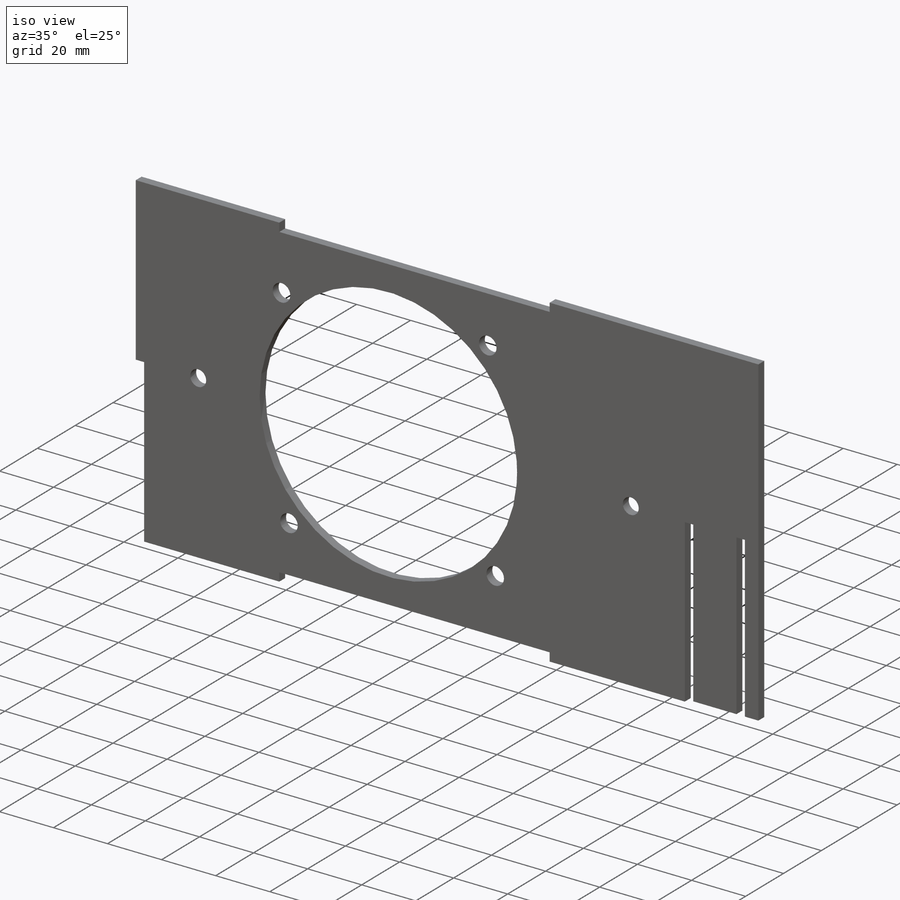
[diagram: iso view]
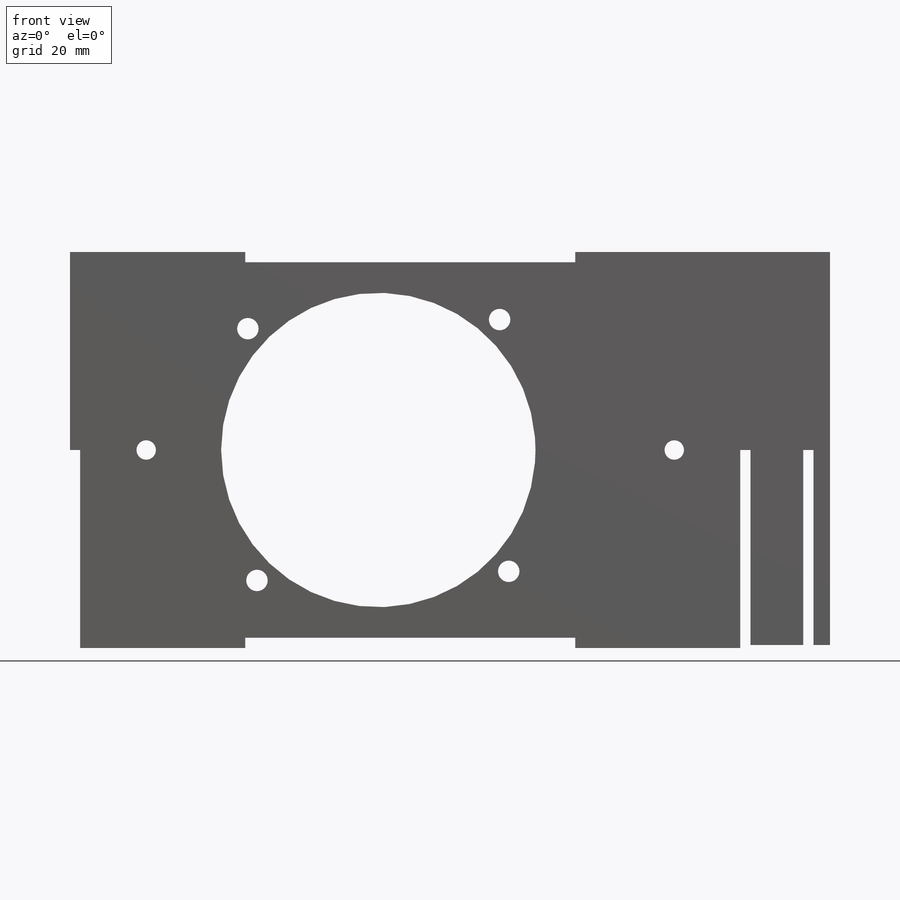
[diagram: front view]
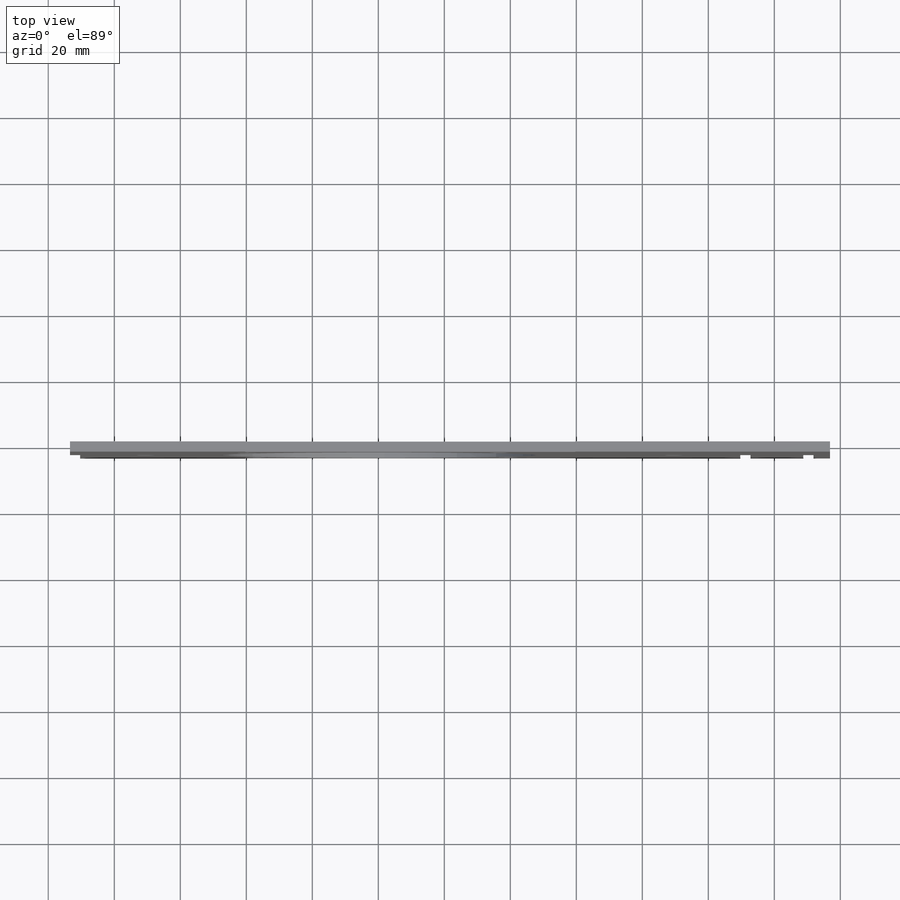
[diagram: top view]
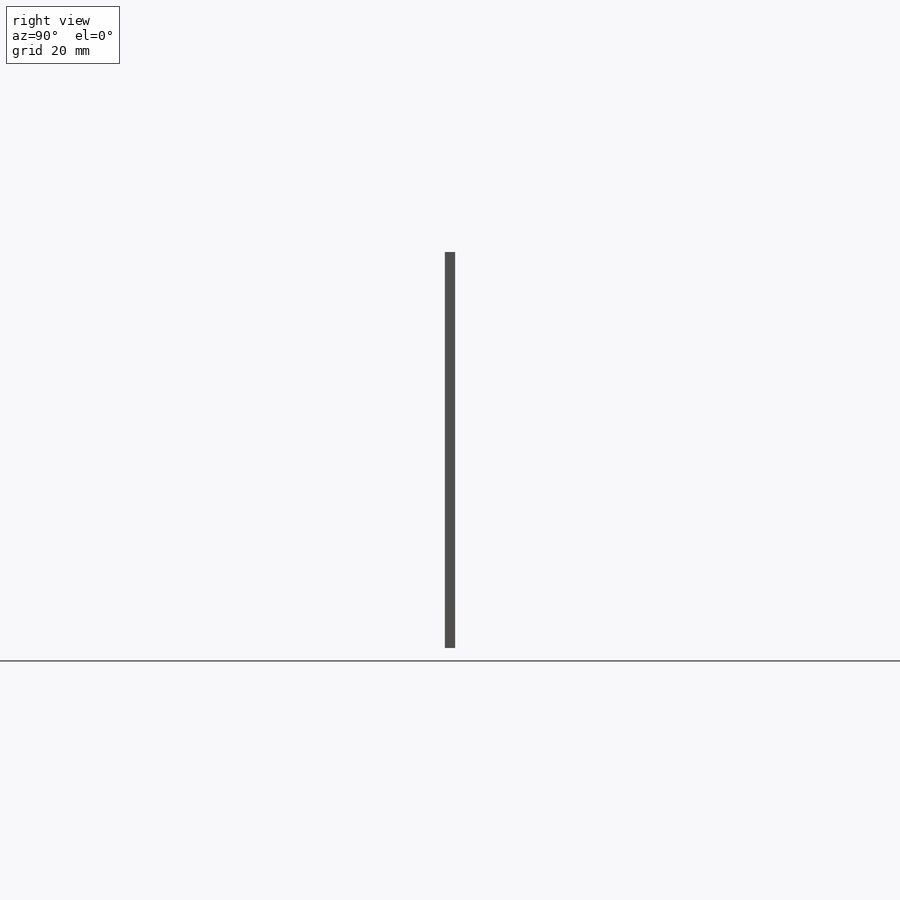
[diagram: right view]
SOLIDWORKS PART (.sldprt)
format: sldprt  version: not decoded by parser v0  size: 449,024 bytes
history: native  units: mm
features: sketch x4, extrude x3, material x1, cut_extrude x1 (+13 scaffold rows collapsed)
feature tree (22):
  scaffold x13  (default folders/planes/origin — collapsed)
  material  "Teak"
  sketch  "Sketch1"  dims[c1.D2=6.5mm c1.D3=95.25mm c1.D8=120.65mm c1.D12=95.25mm c2.D3=~32.55794mm c2.D4=107.95mm c2.D5=0.0mm c2.D6=120.0mm c2.D7=70.325mm c2.D9=200.0mm c3.D7=20.0mm c3.D10=70.325mm c3.D11=80.0mm c3.D12=89.675mm c3.D1=4.0]
  extrude  "Boss-Extrude1"  Depth=3.1mm
  sketch  "Sketch2"  dims[D1=3.1mm]
  extrude  "Boss-Extrude2"  [1 undecoded]
  sketch  "Sketch3"  dims[D1=3.1mm D2=100.0mm]
  cut_extrude  "Cut-Extrude1"  [1 undecoded]
  sketch  "Sketch4"  dims[D1=3.1mm D2=5.0mm D3=16.0mm D4=0.0mm]
  extrude  "Boss-Extrude3"  [1 undecoded]
decode coverage: 5 of 8 modeling features carry decoded parameters
note: ~ marks probable driven/reference dimensions
note: 3 parameter values undecoded
summary: no parameter record found for 3 features
note: suppression state not decoded; provenance and decode notes live in map.json
